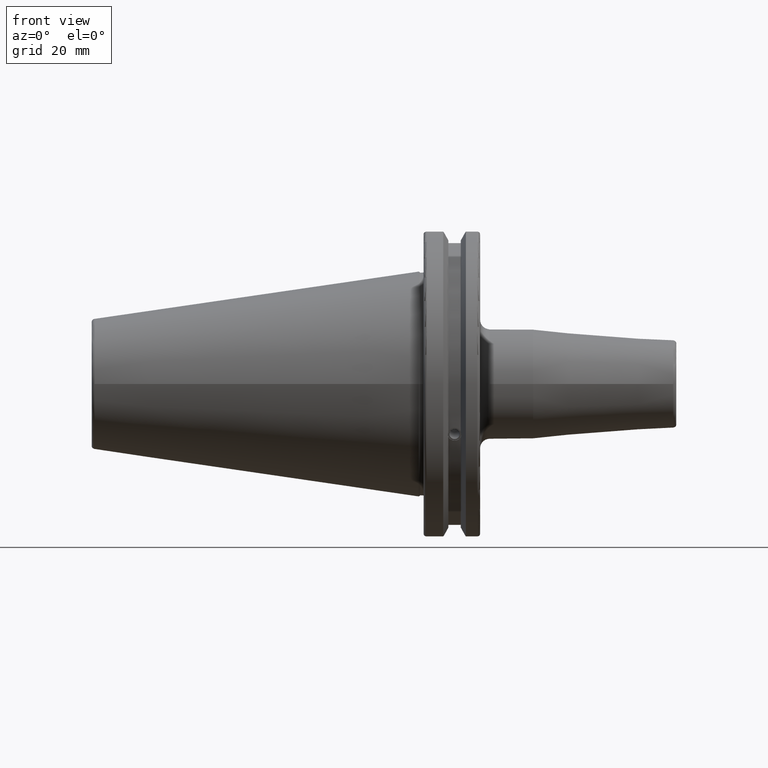
[diagram: clean part render]
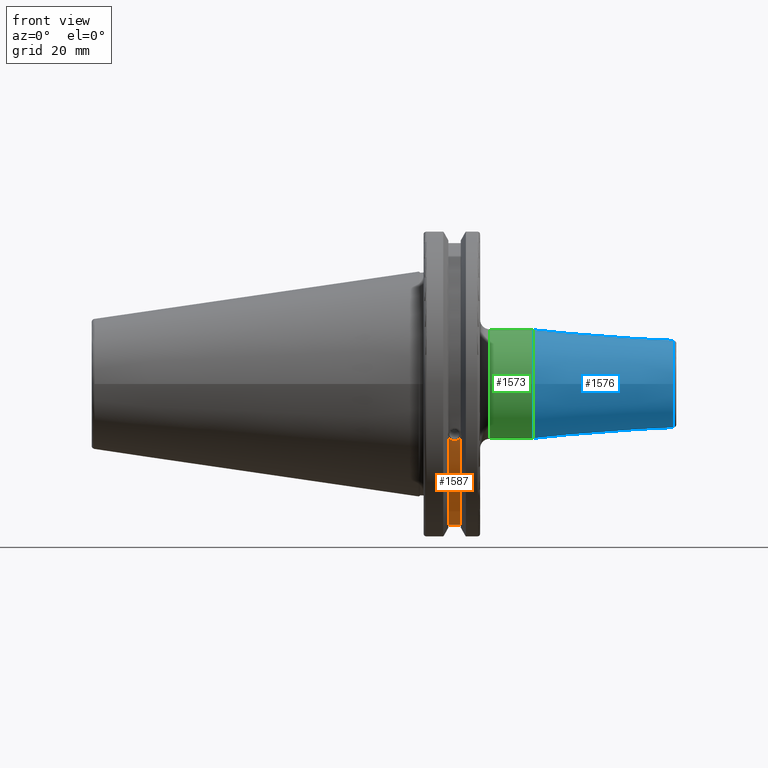
[diagram: same view with three faces highlighted in distinct colors, each labeled with its STEP entity id]
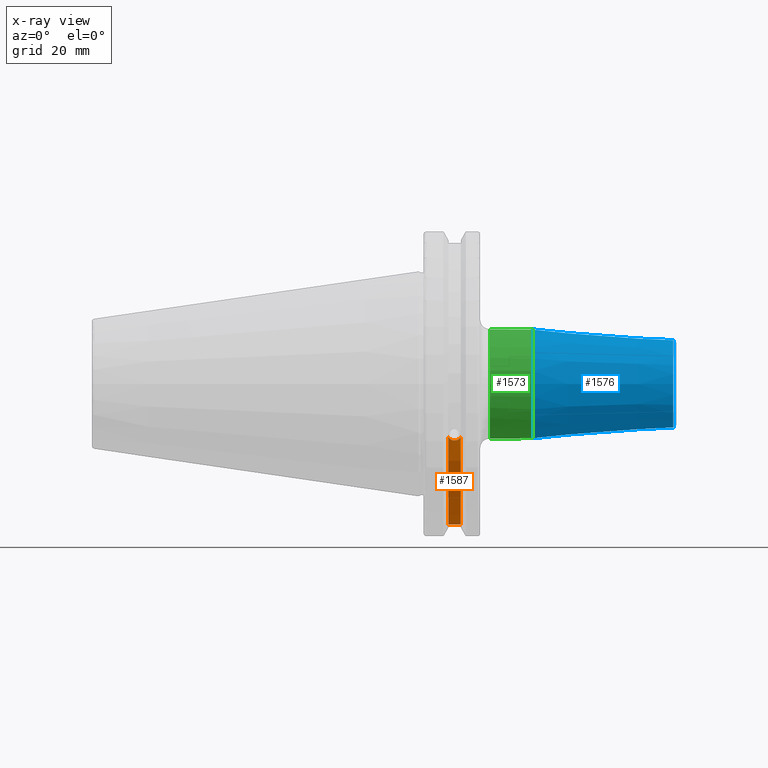
[diagram: x-ray of the same camera — body ghosted, the three highlighted faces saturated]
A machine part, front view with three faces highlighted in distinct colors.
The next image is the same camera in x-ray (body ghosted, the three faces saturated) — at least one of them is partly hidden behind the body in this view.
Their STEP definitions:

[orange] entity #1587 — the highlighted cylindrical surface (partial cylindrical patch) has radius 45.6435 mm, axis along (1, 0, 0).
#112=B_SPLINE_CURVE_WITH_KNOTS('',3,(#2640,#2641,#2642,#2643,#2644,#2645,
#2646,#2647,#2648,#2649,#2650,#2651,#2652,#2653,#2654),.UNSPECIFIED.,.F.,
 .F.,(4,2,2,3,2,2,4),(-0.231381164054419,-0.158232381135623,-0.0791161905678115,
0.,0.0791161905678115,0.158232381135623,0.231381164054565),
 .UNSPECIFIED.);
#156=CYLINDRICAL_SURFACE('',#1740,45.6435);
#201=FACE_OUTER_BOUND('',#304,.T.);
#304=EDGE_LOOP('',(#1205,#1206,#1207,#1208));
#409=LINE('',#2712,#507);
#507=VECTOR('',#2022,10.);
#607=CIRCLE('',#1739,45.6435);
#608=CIRCLE('',#1741,45.6435);
#708=VERTEX_POINT('',#2637);
#709=VERTEX_POINT('',#2639);
#722=VERTEX_POINT('',#2706);
#723=VERTEX_POINT('',#2710);
#885=EDGE_CURVE('',#709,#708,#112,.T.);
#903=EDGE_CURVE('',#709,#722,#607,.T.);
#905=EDGE_CURVE('',#708,#723,#608,.T.);
#906=EDGE_CURVE('',#723,#722,#409,.T.);
#1205=ORIENTED_EDGE('',*,*,#885,.T.);
#1206=ORIENTED_EDGE('',*,*,#905,.T.);
#1207=ORIENTED_EDGE('',*,*,#906,.T.);
#1208=ORIENTED_EDGE('',*,*,#903,.F.);
#1587=ADVANCED_FACE('',(#201),#156,.T.);
#1739=AXIS2_PLACEMENT_3D('',#2707,#2015,#2016);
#1740=AXIS2_PLACEMENT_3D('',#2709,#2018,#2019);
#1741=AXIS2_PLACEMENT_3D('',#2711,#2020,#2021);
#2015=DIRECTION('center_axis',(1.,0.,0.));
#2016=DIRECTION('ref_axis',(0.,0.,-1.));
#2018=DIRECTION('center_axis',(1.,0.,0.));
#2019=DIRECTION('ref_axis',(0.,1.,0.));
#2020=DIRECTION('center_axis',(1.,0.,0.));
#2021=DIRECTION('ref_axis',(0.,0.,-1.));
#2022=DIRECTION('',(1.,0.,0.));
#2637=CARTESIAN_POINT('',(9.21200000000001,-42.5884454651059,-16.4180816515115));
#2639=CARTESIAN_POINT('',(13.042,-42.5884454651059,-16.4180816515115));
#2640=CARTESIAN_POINT('Ctrl Pts',(13.042,-42.5884454651059,-16.4180816515115));
#2641=CARTESIAN_POINT('Ctrl Pts',(12.9357782240206,-42.5035323832641,-16.6383458840848));
#2642=CARTESIAN_POINT('Ctrl Pts',(12.784291924423,-42.4245077186417,-16.8380515255915));
#2643=CARTESIAN_POINT('Ctrl Pts',(12.4254949659982,-42.2908173017388,-17.1712159412199));
#2644=CARTESIAN_POINT('Ctrl Pts',(12.1893796719457,-42.2294695309474,-17.3208689126276));
#2645=CARTESIAN_POINT('Ctrl Pts',(11.6719940832128,-42.1475978938586,-17.5191491957165));
#2646=CARTESIAN_POINT('Ctrl Pts',(11.390720635226,-42.1271980081205,-17.5678194501937));
#2647=CARTESIAN_POINT('Ctrl Pts',(11.127,-42.1271980081205,-17.5678194501937));
#2648=CARTESIAN_POINT('Ctrl Pts',(10.863279364774,-42.1271980081205,-17.5678194501937));
#2649=CARTESIAN_POINT('Ctrl Pts',(10.5820059167872,-42.1475978938586,-17.5191491957165));
#2650=CARTESIAN_POINT('Ctrl Pts',(10.0646203280543,-42.2294695309474,-17.3208689126276));
#2651=CARTESIAN_POINT('Ctrl Pts',(9.82850503400179,-42.2908173017388,-17.1712159412199));
#2652=CARTESIAN_POINT('Ctrl Pts',(9.46970807557665,-42.4245077186418,-16.8380515255912));
#2653=CARTESIAN_POINT('Ctrl Pts',(9.31822177598175,-42.5035323832622,-16.6383458840897));
#2654=CARTESIAN_POINT('Ctrl Pts',(9.21199999999999,-42.5884454651059,-16.4180816515115));
#2706=CARTESIAN_POINT('',(13.042,-12.95,-43.7678716897452));
#2707=CARTESIAN_POINT('Origin',(13.042,0.,0.));
#2709=CARTESIAN_POINT('Origin',(11.127,0.,0.));
#2710=CARTESIAN_POINT('',(9.21200000000001,-12.95,-43.7678716897452));
#2711=CARTESIAN_POINT('Origin',(9.21200000000001,0.,0.));
#2712=CARTESIAN_POINT('',(11.127,-12.95,-43.7678716897452));

[blue] entity #1576 — the highlighted conical surface has half-angle 4.5 deg.
#190=FACE_OUTER_BOUND('',#290,.T.);
#290=EDGE_LOOP('',(#1141,#1142,#1143,#1144,#1145));
#397=LINE('',#2486,#495);
#495=VECTOR('',#1964,15.25);
#592=CIRCLE('',#1710,17.);
#596=CIRCLE('',#1716,13.5725268420749);
#597=CIRCLE('',#1717,13.5725268420749);
#680=VERTEX_POINT('',#2451);
#693=VERTEX_POINT('',#2480);
#694=VERTEX_POINT('',#2482);
#851=EDGE_CURVE('',#680,#680,#592,.T.);
#866=EDGE_CURVE('',#693,#694,#596,.T.);
#867=EDGE_CURVE('',#694,#693,#597,.T.);
#868=EDGE_CURVE('',#694,#680,#397,.T.);
#1141=ORIENTED_EDGE('',*,*,#867,.F.);
#1142=ORIENTED_EDGE('',*,*,#868,.T.);
#1143=ORIENTED_EDGE('',*,*,#851,.T.);
#1144=ORIENTED_EDGE('',*,*,#868,.F.);
#1145=ORIENTED_EDGE('',*,*,#866,.F.);
#1546=CONICAL_SURFACE('',#1718,15.25,0.0785398163397453);
#1576=ADVANCED_FACE('',(#190),#1546,.T.);
#1710=AXIS2_PLACEMENT_3D('',#2452,#1935,#1936);
#1716=AXIS2_PLACEMENT_3D('',#2483,#1958,#1959);
#1717=AXIS2_PLACEMENT_3D('',#2484,#1960,#1961);
#1718=AXIS2_PLACEMENT_3D('',#2485,#1962,#1963);
#1935=DIRECTION('center_axis',(1.,0.,0.));
#1936=DIRECTION('ref_axis',(0.,0.,-1.));
#1958=DIRECTION('center_axis',(1.,0.,0.));
#1959=DIRECTION('ref_axis',(0.,-1.,3.06161699786838E-17));
#1960=DIRECTION('center_axis',(1.,0.,0.));
#1961=DIRECTION('ref_axis',(0.,-1.,3.06161699786838E-17));
#1962=DIRECTION('center_axis',(-1.,0.,0.));
#1963=DIRECTION('ref_axis',(0.,1.,0.));
#1964=DIRECTION('',(-0.996917333733128,-0.0784590957278454,-9.60846804471016E-18));
#2451=CARTESIAN_POINT('',(35.5282834233888,-17.,-2.0818995585505E-15));
#2452=CARTESIAN_POINT('Origin',(35.5282834233888,0.,0.));
#2480=CARTESIAN_POINT('',(79.0784590957279,-1.66215515534886E-15,13.5725268420749));
#2482=CARTESIAN_POINT('',(79.0784590957279,-13.5725268420749,-1.66215515534886E-15));
#2483=CARTESIAN_POINT('Origin',(79.0784590957279,0.,-2.07769394418607E-15));
#2484=CARTESIAN_POINT('Origin',(79.0784590957279,0.,-2.07769394418607E-15));
#2485=CARTESIAN_POINT('Origin',(57.7641417116944,0.,0.));
#2486=CARTESIAN_POINT('',(57.7641417116944,-15.25,-1.86758636869971E-15));

[green] entity #1573 — the highlighted cylindrical surface (bore or boss wall) has radius 17 mm, axis along (1, 0, 0).
#150=CYLINDRICAL_SURFACE('',#1709,17.);
#187=FACE_OUTER_BOUND('',#286,.T.);
#286=EDGE_LOOP('',(#1118,#1119,#1120,#1121,#1122));
#386=LINE('',#2453,#484);
#484=VECTOR('',#1937,17.);
#588=CIRCLE('',#1705,17.);
#591=CIRCLE('',#1708,17.);
#592=CIRCLE('',#1710,17.);
#677=VERTEX_POINT('',#2443);
#678=VERTEX_POINT('',#2444);
#680=VERTEX_POINT('',#2451);
#847=EDGE_CURVE('',#677,#678,#588,.T.);
#850=EDGE_CURVE('',#678,#677,#591,.T.);
#851=EDGE_CURVE('',#680,#680,#592,.T.);
#852=EDGE_CURVE('',#680,#677,#386,.T.);
#1118=ORIENTED_EDGE('',*,*,#851,.F.);
#1119=ORIENTED_EDGE('',*,*,#852,.T.);
#1120=ORIENTED_EDGE('',*,*,#850,.F.);
#1121=ORIENTED_EDGE('',*,*,#847,.F.);
#1122=ORIENTED_EDGE('',*,*,#852,.F.);
#1573=ADVANCED_FACE('',(#187),#150,.T.);
#1705=AXIS2_PLACEMENT_3D('',#2445,#1925,#1926);
#1708=AXIS2_PLACEMENT_3D('',#2449,#1931,#1932);
#1709=AXIS2_PLACEMENT_3D('',#2450,#1933,#1934);
#1710=AXIS2_PLACEMENT_3D('',#2452,#1935,#1936);
#1925=DIRECTION('center_axis',(-1.,0.,0.));
#1926=DIRECTION('ref_axis',(0.,-1.,-1.22464679914735E-16));
#1931=DIRECTION('center_axis',(-1.,0.,0.));
#1932=DIRECTION('ref_axis',(0.,-1.,-1.22464679914735E-16));
#1933=DIRECTION('center_axis',(1.,0.,0.));
#1934=DIRECTION('ref_axis',(0.,1.,0.));
#1935=DIRECTION('center_axis',(1.,0.,0.));
#1936=DIRECTION('ref_axis',(0.,0.,-1.));
#1937=DIRECTION('',(-1.,0.,0.));
#2443=CARTESIAN_POINT('',(22.05,-17.,-2.0818995585505E-15));
#2444=CARTESIAN_POINT('',(22.05,-2.0818995585505E-15,-17.));
#2445=CARTESIAN_POINT('Origin',(22.05,0.,0.));
#2449=CARTESIAN_POINT('Origin',(22.05,0.,0.));
#2450=CARTESIAN_POINT('Origin',(27.2891417116944,0.,0.));
#2451=CARTESIAN_POINT('',(35.5282834233888,-17.,-2.0818995585505E-15));
#2452=CARTESIAN_POINT('Origin',(35.5282834233888,0.,0.));
#2453=CARTESIAN_POINT('',(27.2891417116944,-17.,-2.0818995585505E-15));